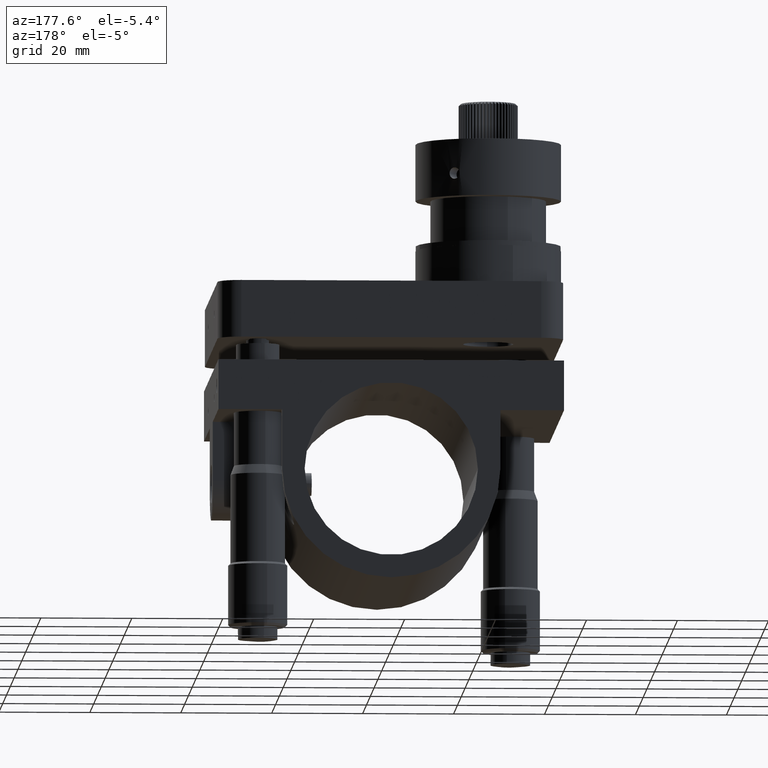
[diagram: clean part render]
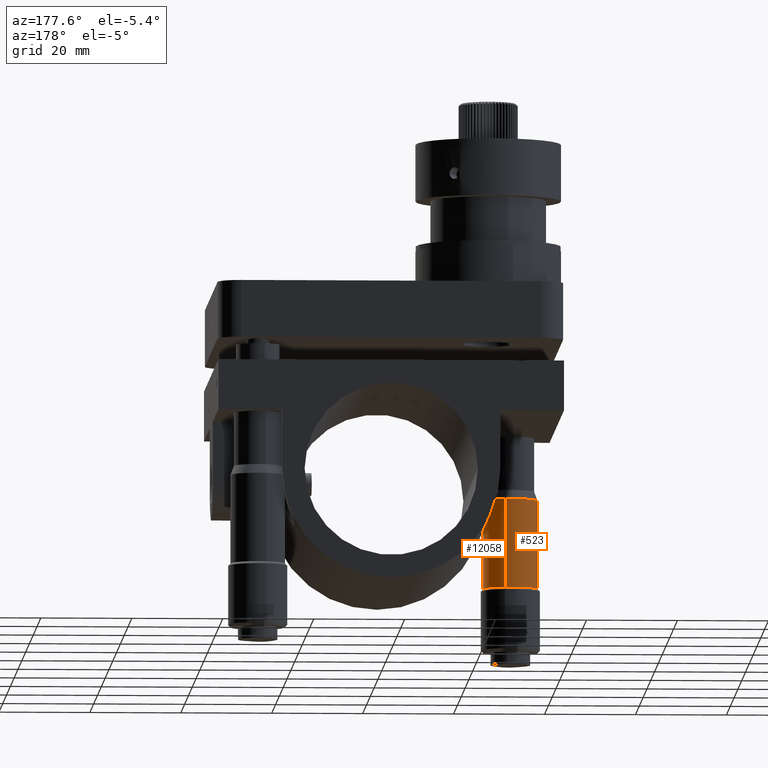
[diagram: same view with one multi-face feature highlighted, each face labeled with its STEP entity id]
A machine part, auxiliary view. The highlighted faces form ONE feature: a constant-radius fillet chain: 2 tangent blend faces with common blend radius 6 mm. The faces share edges in the B-rep.
Their STEP definitions:
[1] entity #523 (Cylinder):
#285 = AXIS2_PLACEMENT_3D ( 'NONE', #7490, #7531, #3577 ) ;
#523 = ADVANCED_FACE ( 'NONE', ( #8856 ), #3586, .T. ) ;
#734 = CIRCLE ( 'NONE', #285, 6.000000000000505400 ) ;
#922 = DIRECTION ( 'NONE',  ( -4.054281524650531300E-015, 1.760394633082142200E-016, 1.000000000000000000 ) ) ;
#1411 = DIRECTION ( 'NONE',  ( -4.054281524650531300E-015, 1.760394633082142200E-016, 1.000000000000000000 ) ) ;
#1549 = VERTEX_POINT ( 'NONE', #2927 ) ;
#1611 = ORIENTED_EDGE ( 'NONE', *, *, #2902, .T. ) ;
#1924 = VECTOR ( 'NONE', #1411, 1000.000000000000000 ) ;
#2231 = EDGE_CURVE ( 'NONE', #2336, #2531, #7452, .T. ) ;
#2303 = EDGE_LOOP ( 'NONE', ( #1611, #9811, #6214, #2308 ) ) ;
#2306 = VERTEX_POINT ( 'NONE', #7379 ) ;
#2308 = ORIENTED_EDGE ( 'NONE', *, *, #4784, .F. ) ;
#2336 = VERTEX_POINT ( 'NONE', #9272 ) ;
#2531 = VERTEX_POINT ( 'NONE', #2909 ) ;
#2902 = EDGE_CURVE ( 'NONE', #2306, #2336, #8945, .T. ) ;
#2909 = CARTESIAN_POINT ( 'NONE',  ( -30.34139253051917600, 237.1518664448330500, -0.7500000000001647600 ) ) ;
#2927 = CARTESIAN_POINT ( 'NONE',  ( -27.65860746948020900, 248.8481335551674600, -0.7500000000001551000 ) ) ;
#3163 = AXIS2_PLACEMENT_3D ( 'NONE', #12286, #922, #9391 ) ;
#3577 = DIRECTION ( 'NONE',  ( 0.2235654217532341000, 0.9746889258611172200, 8.673617379883304800E-016 ) ) ;
#3586 = CYLINDRICAL_SURFACE ( 'NONE', #3163, 6.000000000000505400 ) ;
#4678 = DIRECTION ( 'NONE',  ( -4.054281524650531300E-015, 1.760394633082142200E-016, 1.000000000000000000 ) ) ;
#4784 = EDGE_CURVE ( 'NONE', #2306, #1549, #7637, .T. ) ;
#5497 = CARTESIAN_POINT ( 'NONE',  ( -28.99999999999979700, 243.0000000000001100, -20.25000000000021300 ) ) ;
#5654 = CARTESIAN_POINT ( 'NONE',  ( -27.65860746948023800, 248.8481335551675800, 21.79594347630962400 ) ) ;
#6214 = ORIENTED_EDGE ( 'NONE', *, *, #11348, .F. ) ;
#7379 = CARTESIAN_POINT ( 'NONE',  ( -27.65860746948028000, 248.8481335551672900, -20.25000000000021000 ) ) ;
#7452 = LINE ( 'NONE', #8902, #1924 ) ;
#7490 = CARTESIAN_POINT ( 'NONE',  ( -28.99999999999972600, 243.0000000000002800, -0.7500000000001603200 ) ) ;
#7531 = DIRECTION ( 'NONE',  ( -4.054281524650531300E-015, 1.760394633082142200E-016, 1.000000000000000000 ) ) ;
#7637 = LINE ( 'NONE', #5654, #8079 ) ;
#8079 = VECTOR ( 'NONE', #4678, 1000.000000000000000 ) ;
#8394 = DIRECTION ( 'NONE',  ( 0.2235654217532341000, 0.9746889258611172200, 5.782411586588869500E-016 ) ) ;
#8856 = FACE_OUTER_BOUND ( 'NONE', #2303, .T. ) ;
#8902 = CARTESIAN_POINT ( 'NONE',  ( -30.34139253051927200, 237.1518664448331900, 21.79594347630961700 ) ) ;
#8945 = CIRCLE ( 'NONE', #11815, 6.000000000000505400 ) ;
#9272 = CARTESIAN_POINT ( 'NONE',  ( -30.34139253051931100, 237.1518664448329000, -20.25000000000021700 ) ) ;
#9391 = DIRECTION ( 'NONE',  ( 0.2235654217532341000, 0.9746889258611172200, 5.782411586588869500E-016 ) ) ;
#9811 = ORIENTED_EDGE ( 'NONE', *, *, #2231, .T. ) ;
#11198 = DIRECTION ( 'NONE',  ( -4.054281524650531300E-015, 1.760394633082142200E-016, 1.000000000000000000 ) ) ;
#11348 = EDGE_CURVE ( 'NONE', #1549, #2531, #734, .T. ) ;
#11815 = AXIS2_PLACEMENT_3D ( 'NONE', #5497, #11198, #8394 ) ;
#12286 = CARTESIAN_POINT ( 'NONE',  ( -28.99999999999975500, 243.0000000000003700, 21.79594347630962000 ) ) ;
[2] entity #12058 (Cylinder):
#1411 = DIRECTION ( 'NONE',  ( -4.054281524650531300E-015, 1.760394633082142200E-016, 1.000000000000000000 ) ) ;
#1549 = VERTEX_POINT ( 'NONE', #2927 ) ;
#1630 = CYLINDRICAL_SURFACE ( 'NONE', #9350, 6.000000000000505400 ) ;
#1798 = ORIENTED_EDGE ( 'NONE', *, *, #4784, .T. ) ;
#1924 = VECTOR ( 'NONE', #1411, 1000.000000000000000 ) ;
#2231 = EDGE_CURVE ( 'NONE', #2336, #2531, #7452, .T. ) ;
#2306 = VERTEX_POINT ( 'NONE', #7379 ) ;
#2312 = DIRECTION ( 'NONE',  ( -4.054281524650531300E-015, 1.760394633082142200E-016, 1.000000000000000000 ) ) ;
#2323 = ORIENTED_EDGE ( 'NONE', *, *, #8839, .F. ) ;
#2336 = VERTEX_POINT ( 'NONE', #9272 ) ;
#2364 = ORIENTED_EDGE ( 'NONE', *, *, #2231, .F. ) ;
#2531 = VERTEX_POINT ( 'NONE', #2909 ) ;
#2909 = CARTESIAN_POINT ( 'NONE',  ( -30.34139253051917600, 237.1518664448330500, -0.7500000000001647600 ) ) ;
#2927 = CARTESIAN_POINT ( 'NONE',  ( -27.65860746948020900, 248.8481335551674600, -0.7500000000001551000 ) ) ;
#3125 = EDGE_CURVE ( 'NONE', #2336, #2306, #11858, .T. ) ;
#4305 = DIRECTION ( 'NONE',  ( -4.054281524650531300E-015, 1.760394633082142200E-016, 1.000000000000000000 ) ) ;
#4539 = CARTESIAN_POINT ( 'NONE',  ( -28.99999999999972600, 243.0000000000002800, -0.7500000000001603200 ) ) ;
#4678 = DIRECTION ( 'NONE',  ( -4.054281524650531300E-015, 1.760394633082142200E-016, 1.000000000000000000 ) ) ;
#4784 = EDGE_CURVE ( 'NONE', #2306, #1549, #7637, .T. ) ;
#5443 = AXIS2_PLACEMENT_3D ( 'NONE', #4539, #10423, #10313 ) ;
#5654 = CARTESIAN_POINT ( 'NONE',  ( -27.65860746948023800, 248.8481335551675800, 21.79594347630962400 ) ) ;
#6016 = AXIS2_PLACEMENT_3D ( 'NONE', #6188, #2312, #9920 ) ;
#6165 = DIRECTION ( 'NONE',  ( 0.2235654217532341000, 0.9746889258611172200, 5.782411586588869500E-016 ) ) ;
#6188 = CARTESIAN_POINT ( 'NONE',  ( -28.99999999999979700, 243.0000000000001100, -20.25000000000021300 ) ) ;
#6207 = CARTESIAN_POINT ( 'NONE',  ( -28.99999999999975500, 243.0000000000003700, 21.79594347630962000 ) ) ;
#6701 = FACE_OUTER_BOUND ( 'NONE', #9980, .T. ) ;
#7159 = ORIENTED_EDGE ( 'NONE', *, *, #3125, .T. ) ;
#7379 = CARTESIAN_POINT ( 'NONE',  ( -27.65860746948028000, 248.8481335551672900, -20.25000000000021000 ) ) ;
#7452 = LINE ( 'NONE', #8902, #1924 ) ;
#7637 = LINE ( 'NONE', #5654, #8079 ) ;
#8079 = VECTOR ( 'NONE', #4678, 1000.000000000000000 ) ;
#8839 = EDGE_CURVE ( 'NONE', #2531, #1549, #9464, .T. ) ;
#8902 = CARTESIAN_POINT ( 'NONE',  ( -30.34139253051927200, 237.1518664448331900, 21.79594347630961700 ) ) ;
#9272 = CARTESIAN_POINT ( 'NONE',  ( -30.34139253051931100, 237.1518664448329000, -20.25000000000021700 ) ) ;
#9350 = AXIS2_PLACEMENT_3D ( 'NONE', #6207, #4305, #6165 ) ;
#9464 = CIRCLE ( 'NONE', #5443, 6.000000000000505400 ) ;
#9920 = DIRECTION ( 'NONE',  ( 0.2235654217532341000, 0.9746889258611172200, 5.782411586588869500E-016 ) ) ;
#9980 = EDGE_LOOP ( 'NONE', ( #2364, #7159, #1798, #2323 ) ) ;
#10313 = DIRECTION ( 'NONE',  ( 0.2235654217532341000, 0.9746889258611172200, 8.673617379883304800E-016 ) ) ;
#10423 = DIRECTION ( 'NONE',  ( -4.054281524650531300E-015, 1.760394633082142200E-016, 1.000000000000000000 ) ) ;
#11858 = CIRCLE ( 'NONE', #6016, 6.000000000000505400 ) ;
#12058 = ADVANCED_FACE ( 'NONE', ( #6701 ), #1630, .T. ) ;